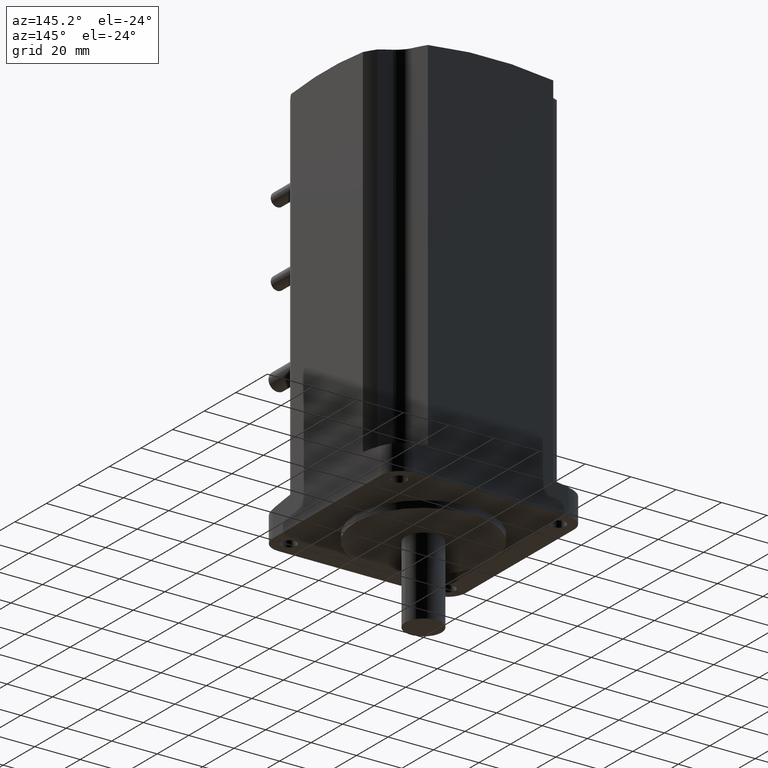
[diagram: clean part render]
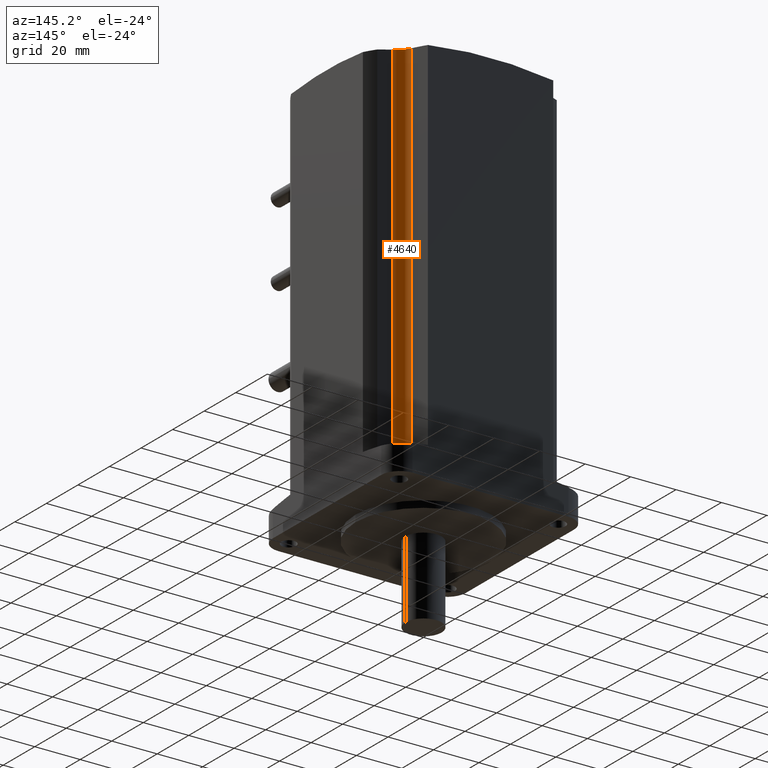
[diagram: same view with one face highlighted and labeled with its STEP entity id]
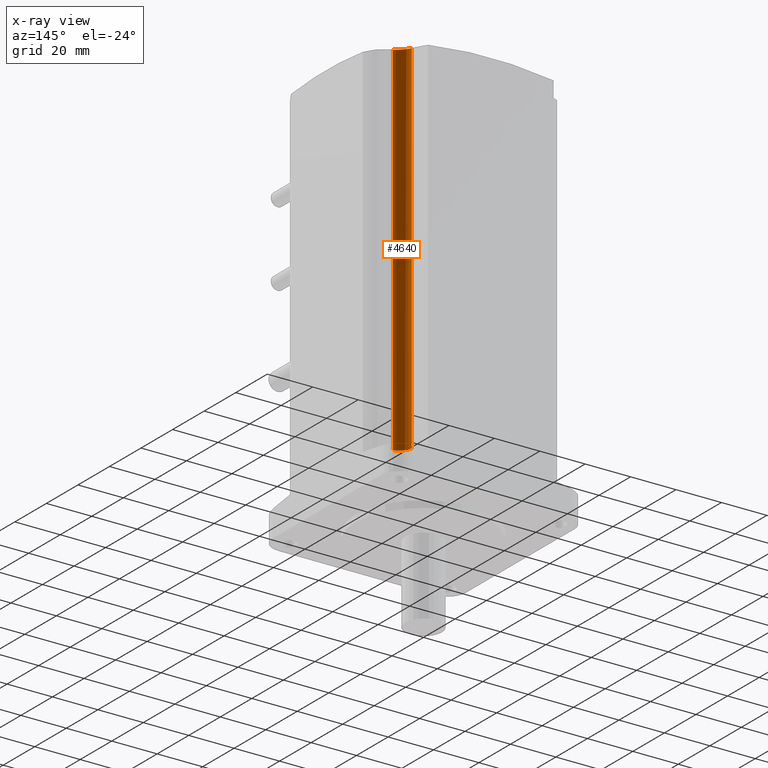
[diagram: x-ray of the same camera — body ghosted, the highlighted face saturated]
A machine part, auxiliary view. The second image highlights one B-rep face of the part: STEP entity #4640.
The next image is the same camera in x-ray: the body ghosted, the highlighted face saturated — about 0% of this face is hidden behind the body in this view.
In plain terms, the highlighted cylindrical surface (edge-blend (fillet) strip) has radius 6.2 mm, axis along (-0, -0, -1).
Its self-contained STEP definition (entity closure, byte-faithful):
#337 = CARTESIAN_POINT ( 'NONE',  ( 33.60182086453011152, 28.95971067703403534, 172.5656754473278056 ) ) ;
#433 = VECTOR ( 'NONE', #858, 1000.000000000000000 ) ;
#473 = VERTEX_POINT ( 'NONE', #2678 ) ;
#528 = VERTEX_POINT ( 'NONE', #2704 ) ;
#733 = CARTESIAN_POINT ( 'NONE',  ( 29.54121185625405843, 32.04408928024616898, 172.7408026951315776 ) ) ;
#775 = VERTEX_POINT ( 'NONE', #4261 ) ;
#858 = DIRECTION ( 'NONE',  ( -0.0000000000000000000, -0.0000000000000000000, -1.000000000000000000 ) ) ;
#1002 = DIRECTION ( 'NONE',  ( 1.000000000000000000, 0.0000000000000000000, 0.0000000000000000000 ) ) ;
#1042 = CIRCLE ( 'NONE', #4347, 6.199999999999997513 ) ;
#1090 = LINE ( 'NONE', #3647, #4279 ) ;
#1130 = CARTESIAN_POINT ( 'NONE',  ( 32.43089394695857663, 29.34886546865727297, 172.7059321950110871 ) ) ;
#1207 = CARTESIAN_POINT ( 'NONE',  ( 30.04208798208008346, 31.26452495140712173, 172.7907664228655165 ) ) ;
#1250 = LINE ( 'NONE', #3711, #433 ) ;
#1498 = CARTESIAN_POINT ( 'NONE',  ( 33.00596788524396175, 29.12127026234155736, 172.6436050303224761 ) ) ;
#1520 = CARTESIAN_POINT ( 'NONE',  ( 28.86919802653621048, 34.07627538618239527, 172.4967571973375016 ) ) ;
#1568 = CARTESIAN_POINT ( 'NONE',  ( 29.69660942951325566, 31.77374615490858289, 172.7614111912785688 ) ) ;
#1726 = AXIS2_PLACEMENT_3D ( 'NONE', #2377, #3169, #5222 ) ;
#1883 = EDGE_CURVE ( 'NONE', #473, #775, #1250, .T. ) ;
#1928 = B_SPLINE_CURVE_WITH_KNOTS ( 'NONE', 3,
 ( #1520, #3134, #5184, #733, #1568, #1207, #4767, #2415, #4415, #2771, #4038, #3160, #1130, #1498, #2340, #337 ),
 .UNSPECIFIED., .F., .F.,
 ( 4, 2, 2, 2, 2, 2, 2, 4 ),
 ( 2.016974705179764964E-07, 0.001846706340402546904, 0.002769958661868566780, 0.003693210983334587090, 0.004616463304800606966, 0.005539715626266619036, 0.006462967947732631106, 0.007386220269198643176 ),
 .UNSPECIFIED. ) ;
#2002 = FACE_OUTER_BOUND ( 'NONE', #4456, .T. ) ;
#2138 = EDGE_CURVE ( 'NONE', #528, #473, #1928, .T. ) ;
#2300 = CARTESIAN_POINT ( 'NONE',  ( 28.86919802653621403, 34.07627538618239527, 13.99999999999999822 ) ) ;
#2340 = CARTESIAN_POINT ( 'NONE',  ( 33.30042872042127300, 29.02947558148742502, 172.6072456029620241 ) ) ;
#2377 = CARTESIAN_POINT ( 'NONE',  ( 35.00000000000000000, 35.00000000000000000, 100.9999999999999858 ) ) ;
#2405 = DIRECTION ( 'NONE',  ( -0.0000000000000000000, -0.0000000000000000000, -1.000000000000000000 ) ) ;
#2415 = CARTESIAN_POINT ( 'NONE',  ( 30.65256366317697001, 30.56880982352203091, 172.8060455913229134 ) ) ;
#2678 = CARTESIAN_POINT ( 'NONE',  ( 33.60182086453011152, 28.95971067703403534, 172.5656754473278056 ) ) ;
#2704 = CARTESIAN_POINT ( 'NONE',  ( 28.86919802653621048, 34.07627538618239527, 172.4967571973375016 ) ) ;
#2771 = CARTESIAN_POINT ( 'NONE',  ( 31.36406596055472917, 29.96857289429997095, 172.7861005151479503 ) ) ;
#2774 = ORIENTED_EDGE ( 'NONE', *, *, #1883, .T. ) ;
#3091 = EDGE_CURVE ( 'NONE', #775, #4526, #1042, .T. ) ;
#3134 = CARTESIAN_POINT ( 'NONE',  ( 28.96115440581028011, 33.46595674457324066, 172.5898205939515151 ) ) ;
#3160 = CARTESIAN_POINT ( 'NONE',  ( 32.15002115996330190, 29.48525383952047818, 172.7318410014547680 ) ) ;
#3169 = DIRECTION ( 'NONE',  ( -0.0000000000000000000, -0.0000000000000000000, -1.000000000000000000 ) ) ;
#3457 = CARTESIAN_POINT ( 'NONE',  ( 35.00000000000000000, 35.00000000000000000, 14.00000000000000000 ) ) ;
#3616 = ORIENTED_EDGE ( 'NONE', *, *, #2138, .T. ) ;
#3647 = CARTESIAN_POINT ( 'NONE',  ( 28.86919802653621403, 34.07627538618240237, 100.9999999999999858 ) ) ;
#3711 = CARTESIAN_POINT ( 'NONE',  ( 33.60182086453011152, 28.95971067703403534, 100.9999999999999858 ) ) ;
#4038 = CARTESIAN_POINT ( 'NONE',  ( 31.61764680952327566, 29.79476306994078882, 172.7718004775844634 ) ) ;
#4261 = CARTESIAN_POINT ( 'NONE',  ( 33.60182086453011152, 28.95971067703403534, 13.99999999999999822 ) ) ;
#4279 = VECTOR ( 'NONE', #2405, 1000.000000000000000 ) ;
#4347 = AXIS2_PLACEMENT_3D ( 'NONE', #3457, #4554, #1002 ) ;
#4400 = CYLINDRICAL_SURFACE ( 'NONE', #1726, 6.199999999999997513 ) ;
#4415 = CARTESIAN_POINT ( 'NONE',  ( 30.88230511692524161, 30.35458678812425148, 172.8032640715453567 ) ) ;
#4456 = EDGE_LOOP ( 'NONE', ( #5203, #4532, #3616, #2774 ) ) ;
#4526 = VERTEX_POINT ( 'NONE', #2300 ) ;
#4532 = ORIENTED_EDGE ( 'NONE', *, *, #4616, .F. ) ;
#4554 = DIRECTION ( 'NONE',  ( -0.0000000000000000000, -0.0000000000000000000, -1.000000000000000000 ) ) ;
#4616 = EDGE_CURVE ( 'NONE', #528, #4526, #1090, .T. ) ;
#4640 = ADVANCED_FACE ( 'NONE', ( #2002 ), #4400, .F. ) ;
#4767 = CARTESIAN_POINT ( 'NONE',  ( 30.23316422796424519, 31.02345302991597364, 172.7997280737659480 ) ) ;
#5184 = CARTESIAN_POINT ( 'NONE',  ( 29.14037456951505689, 32.88153486216071997, 172.6625044096330441 ) ) ;
#5203 = ORIENTED_EDGE ( 'NONE', *, *, #3091, .T. ) ;
#5222 = DIRECTION ( 'NONE',  ( -1.000000000000000000, 0.0000000000000000000, 0.0000000000000000000 ) ) ;